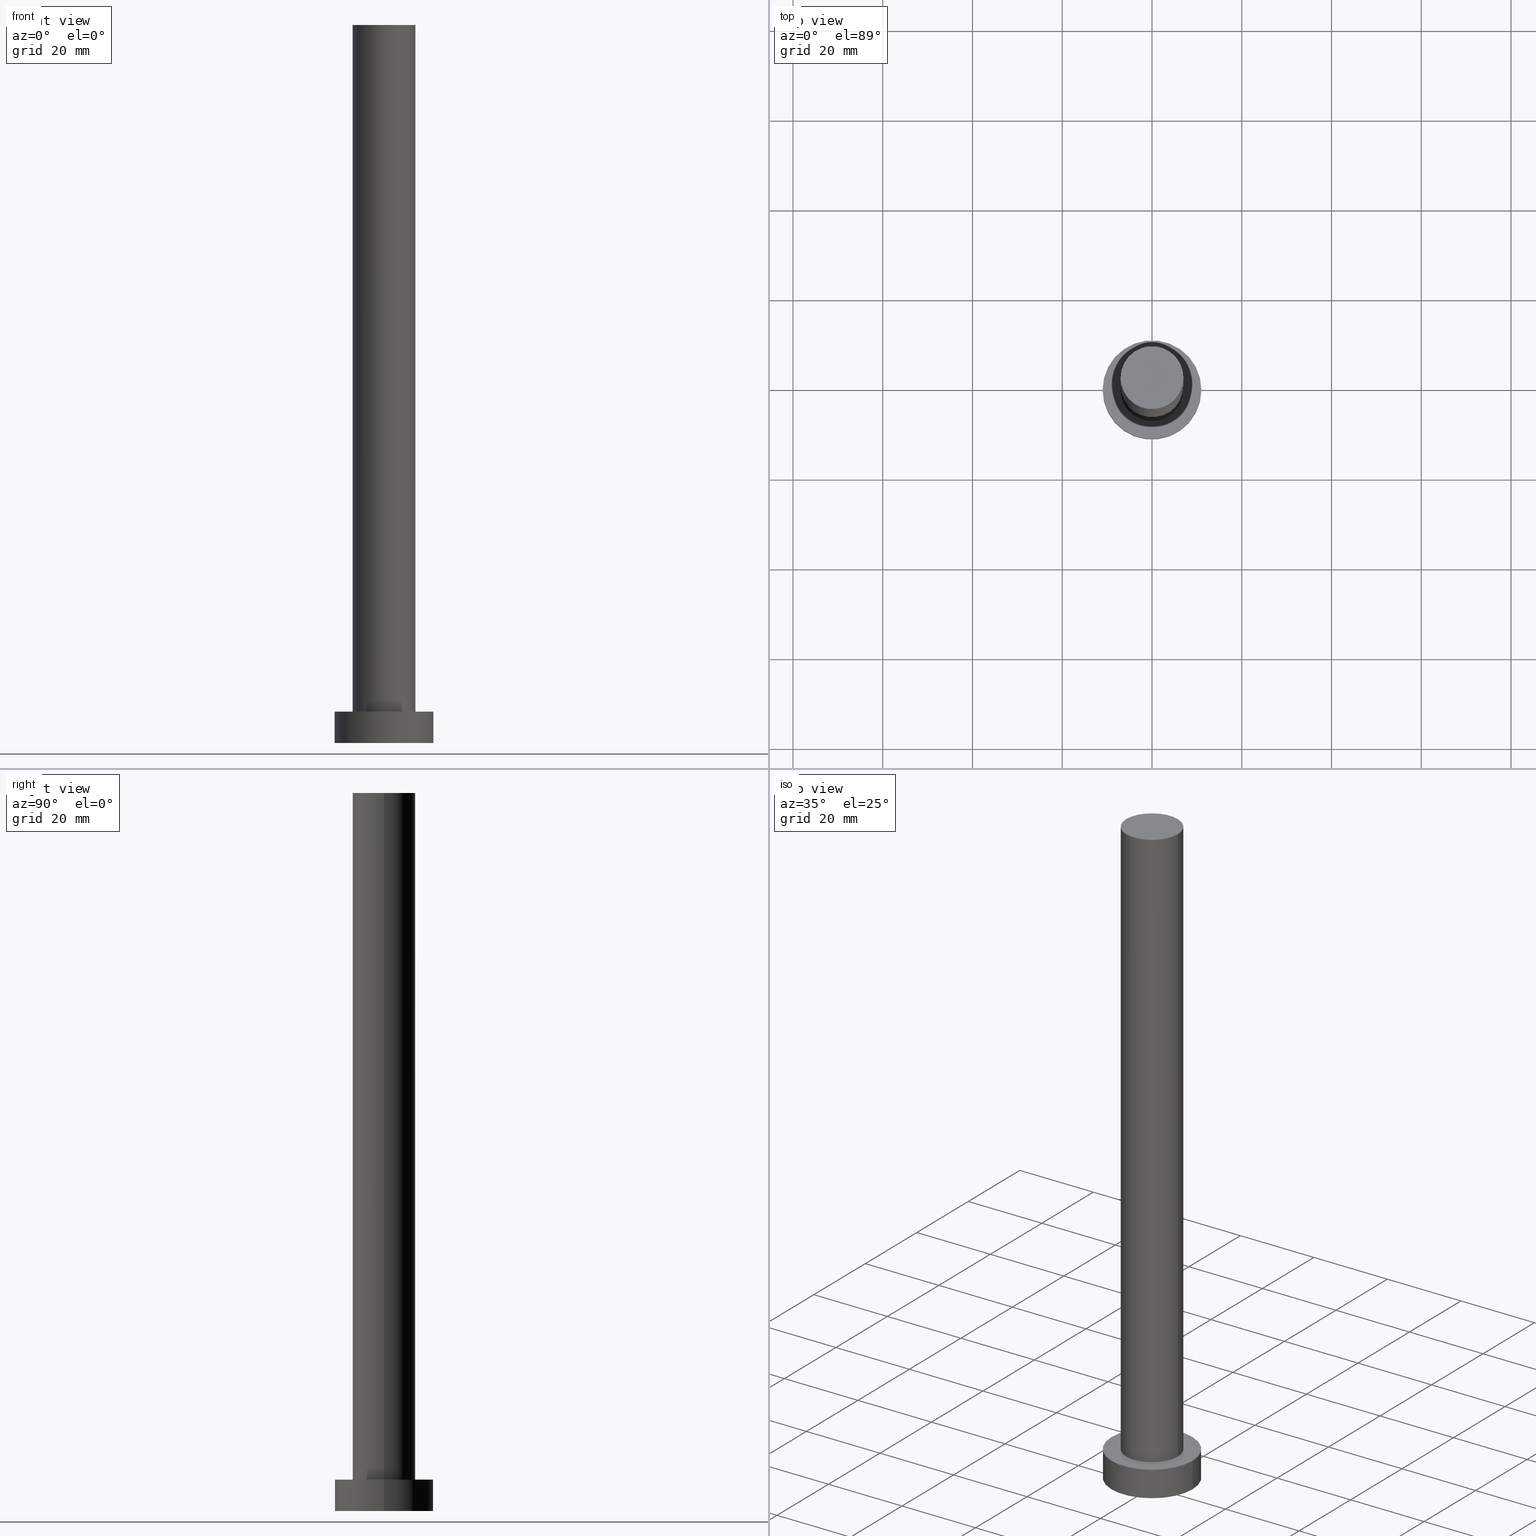
[diagram: canonical four-view strip — front | top / right | iso, engineering-drawing reading convention]
A machine part, canonical four-view strip (front | top / right | iso — engineering-drawing reading convention). The complete STEP part file that produces these views, byte-faithful:
ISO-10303-21;
HEADER;
FILE_DESCRIPTION (( 'STEP AP203' ),
    '1' );
FILE_NAME ('ef41.STEP',
    '2023-02-13T10:36:09',
    ( '' ),
    ( '' ),
    'SwSTEP 2.0',
    'SolidWorks 2019',
    '' );
FILE_SCHEMA (( 'CONFIG_CONTROL_DESIGN' ));
ENDSEC;

DATA;
#1 = EDGE_LOOP ( 'NONE', ( #198, #22, #152, #236 ) ) ;
#2 = CARTESIAN_POINT ( 'NONE',  ( 0.000000000000000000, 0.000000000000000000, 7.000000000000000000 ) ) ;
#3 = LINE ( 'NONE', #47, #178 ) ;
#4 = UNCERTAINTY_MEASURE_WITH_UNIT (LENGTH_MEASURE( 1.000000000000000082E-05 ), #24, 'distance_accuracy_value', 'NONE');
#5 = DIRECTION ( 'NONE',  ( 0.000000000000000000, 0.000000000000000000, 1.000000000000000000 ) ) ;
#6 = VECTOR ( 'NONE', #203, 1000.000000000000000 ) ;
#7 = AXIS2_PLACEMENT_3D ( 'NONE', #247, #130, #211 ) ;
#8 = ADVANCED_FACE ( 'NONE', ( #148 ), #113, .T. ) ;
#9 = DIRECTION ( 'NONE',  ( -0.000000000000000000, -0.000000000000000000, -1.000000000000000000 ) ) ;
#10 = PLANE ( 'NONE',  #65 ) ;
#11 = ADVANCED_FACE ( 'NONE', ( #255 ), #176, .T. ) ;
#12 = APPLICATION_PROTOCOL_DEFINITION ( 'international standard', 'config_control_design', 1994, #238 ) ;
#13 = ORGANIZATION ( 'NEUR�EN�', 'NEUR�EN�', '' ) ;
#14 = PERSON_AND_ORGANIZATION ( #160, #13 ) ;
#15 = COORDINATED_UNIVERSAL_TIME_OFFSET ( 1, 0, .AHEAD. ) ;
#16 = MECHANICAL_CONTEXT ( 'NONE', #238, 'mechanical' ) ;
#17 = VECTOR ( 'NONE', #212, 1000.000000000000000 ) ;
#18 = DIRECTION ( 'NONE',  ( -0.000000000000000000, -0.000000000000000000, -1.000000000000000000 ) ) ;
#19 = EDGE_CURVE ( 'NONE', #234, #116, #88, .T. ) ;
#20 = DIRECTION ( 'NONE',  ( 1.000000000000000000, 0.000000000000000000, 0.000000000000000000 ) ) ;
#21 = DIRECTION ( 'NONE',  ( -1.000000000000000000, 0.000000000000000000, 0.000000000000000000 ) ) ;
#22 = ORIENTED_EDGE ( 'NONE', *, *, #109, .T. ) ;
#23 = VERTEX_POINT ( 'NONE', #98 ) ;
#24 =( LENGTH_UNIT ( ) NAMED_UNIT ( * ) SI_UNIT ( .MILLI., .METRE. ) );
#25 = CARTESIAN_POINT ( 'NONE',  ( 11.00000000000000000, 1.347111479062088405E-15, 7.000000000000000000 ) ) ;
#26 = EDGE_CURVE ( 'NONE', #177, #116, #80, .T. ) ;
#27 = DIRECTION ( 'NONE',  ( 1.000000000000000000, 0.000000000000000000, 0.000000000000000000 ) ) ;
#28 = FACE_BOUND ( 'NONE', #199, .T. ) ;
#29 = EDGE_CURVE ( 'NONE', #201, #81, #53, .T. ) ;
#30 = PERSON_AND_ORGANIZATION ( #160, #13 ) ;
#31 = AXIS2_PLACEMENT_3D ( 'NONE', #202, #222, #159 ) ;
#32 = APPROVAL_PERSON_ORGANIZATION ( #73, #114, #54 ) ;
#33 = APPROVAL_STATUS ( 'not_yet_approved' ) ;
#34 = DATE_AND_TIME ( #231, #191 ) ;
#35 = DIRECTION ( 'NONE',  ( 0.000000000000000000, 0.000000000000000000, 1.000000000000000000 ) ) ;
#36 = ADVANCED_FACE ( 'NONE', ( #67 ), #181, .T. ) ;
#37 = APPLICATION_CONTEXT ( 'configuration controlled 3d designs of mechanical parts and assemblies' ) ;
#38 = ORIENTED_EDGE ( 'NONE', *, *, #182, .T. ) ;
#39 = AXIS2_PLACEMENT_3D ( 'NONE', #225, #206, #179 ) ;
#40 = ORIENTED_EDGE ( 'NONE', *, *, #63, .T. ) ;
#41 = APPROVAL_PERSON_ORGANIZATION ( #30, #156, #192 ) ;
#42 = ORIENTED_EDGE ( 'NONE', *, *, #253, .T. ) ;
#43 = ORIENTED_EDGE ( 'NONE', *, *, #26, .F. ) ;
#44 = CC_DESIGN_APPROVAL ( #156, ( #79 ) ) ;
#45 = CARTESIAN_POINT ( 'NONE',  ( 0.000000000000000000, 0.000000000000000000, 7.000000000000000000 ) ) ;
#46 = EDGE_CURVE ( 'NONE', #250, #234, #106, .T. ) ;
#47 = CARTESIAN_POINT ( 'NONE',  ( 11.00000000000000000, 1.347111479062088405E-15, 7.000000000000000000 ) ) ;
#48 = DIRECTION ( 'NONE',  ( 1.000000000000000000, 0.000000000000000000, 0.000000000000000000 ) ) ;
#49 = CIRCLE ( 'NONE', #220, 7.000000000000000888 ) ;
#50 = FACE_OUTER_BOUND ( 'NONE', #136, .T. ) ;
#51 = APPROVAL_STATUS ( 'not_yet_approved' ) ;
#52 = COORDINATED_UNIVERSAL_TIME_OFFSET ( 1, 0, .AHEAD. ) ;
#53 = CIRCLE ( 'NONE', #164, 11.00000000000000000 ) ;
#54 = APPROVAL_ROLE ( '' ) ;
#55 = CC_DESIGN_DATE_AND_TIME_ASSIGNMENT ( #171, #194, ( #168 ) ) ;
#56 = MANIFOLD_SOLID_BREP ( 'P�idat vysunut�m3', #204 ) ;
#57 = PERSON_AND_ORGANIZATION_ROLE ( 'design_supplier' ) ;
#58 = EDGE_LOOP ( 'NONE', ( #134, #218, #115, #154 ) ) ;
#59 = EDGE_LOOP ( 'NONE', ( #173, #254, #232, #42 ) ) ;
#60 = ORIENTED_EDGE ( 'NONE', *, *, #135, .F. ) ;
#61 = ORIENTED_EDGE ( 'NONE', *, *, #182, .F. ) ;
#62 = CARTESIAN_POINT ( 'NONE',  ( 0.000000000000000000, 0.000000000000000000, 7.000000000000000000 ) ) ;
#63 = EDGE_CURVE ( 'NONE', #177, #250, #49, .T. ) ;
#64 = PLANE ( 'NONE',  #83 ) ;
#65 = AXIS2_PLACEMENT_3D ( 'NONE', #91, #162, #221 ) ;
#66 = CARTESIAN_POINT ( 'NONE',  ( 0.000000000000000000, 0.000000000000000000, 160.0000000000000000 ) ) ;
#67 = FACE_OUTER_BOUND ( 'NONE', #217, .T. ) ;
#68 = DIRECTION ( 'NONE',  ( 0.000000000000000000, 0.000000000000000000, 1.000000000000000000 ) ) ;
#69 = AXIS2_PLACEMENT_3D ( 'NONE', #82, #97, #20 ) ;
#70 = PRODUCT_DEFINITION_FORMATION_WITH_SPECIFIED_SOURCE ( 'LIBOVOLN�', '', #196, .NOT_KNOWN. ) ;
#71 = DATE_AND_TIME ( #245, #229 ) ;
#72 = APPROVAL_DATE_TIME ( #34, #114 ) ;
#73 = PERSON_AND_ORGANIZATION ( #160, #13 ) ;
#74 = ADVANCED_FACE ( 'NONE', ( #157 ), #121, .T. ) ;
#75 = APPROVAL_ROLE ( '' ) ;
#76 = PERSON_AND_ORGANIZATION ( #160, #13 ) ;
#77 = EDGE_LOOP ( 'NONE', ( #233, #84 ) ) ;
#78 = AXIS2_PLACEMENT_3D ( 'NONE', #101, #242, #124 ) ;
#79 = SECURITY_CLASSIFICATION ( '', '', #165 ) ;
#80 = LINE ( 'NONE', #153, #17 ) ;
#81 = VERTEX_POINT ( 'NONE', #25 ) ;
#82 = CARTESIAN_POINT ( 'NONE',  ( 0.000000000000000000, 0.000000000000000000, 7.000000000000000000 ) ) ;
#83 = AXIS2_PLACEMENT_3D ( 'NONE', #119, #5, #87 ) ;
#84 = ORIENTED_EDGE ( 'NONE', *, *, #246, .T. ) ;
#85 = DIRECTION ( 'NONE',  ( 0.000000000000000000, 0.000000000000000000, 1.000000000000000000 ) ) ;
#86 = DIRECTION ( 'NONE',  ( 1.000000000000000000, 0.000000000000000000, 0.000000000000000000 ) ) ;
#87 = DIRECTION ( 'NONE',  ( 1.000000000000000000, 0.000000000000000000, -0.000000000000000000 ) ) ;
#88 = CIRCLE ( 'NONE', #69, 7.000000000000000888 ) ;
#89 = CC_DESIGN_APPROVAL ( #114, ( #168 ) ) ;
#90 = CARTESIAN_POINT ( 'NONE',  ( -7.000000000000000888, 0.000000000000000000, 160.0000000000000000 ) ) ;
#91 = CARTESIAN_POINT ( 'NONE',  ( 0.000000000000000000, 0.000000000000000000, 0.000000000000000000 ) ) ;
#92 = COORDINATED_UNIVERSAL_TIME_OFFSET ( 1, 0, .AHEAD. ) ;
#93 = ADVANCED_FACE ( 'NONE', ( #28, #205 ), #64, .T. ) ;
#94 = CALENDAR_DATE ( 2023, 13, 2 ) ;
#95 = APPLICATION_PROTOCOL_DEFINITION ( 'international standard', 'config_control_design', 1994, #37 ) ;
#96 = DATE_AND_TIME ( #249, #169 ) ;
#97 = DIRECTION ( 'NONE',  ( 0.000000000000000000, 0.000000000000000000, 1.000000000000000000 ) ) ;
#98 = CARTESIAN_POINT ( 'NONE',  ( 11.00000000000000000, 1.347111479062088405E-15, 0.000000000000000000 ) ) ;
#99 = CC_DESIGN_PERSON_AND_ORGANIZATION_ASSIGNMENT ( #110, #111, ( #168 ) ) ;
#100 = ORIENTED_EDGE ( 'NONE', *, *, #19, .T. ) ;
#101 = CARTESIAN_POINT ( 'NONE',  ( 0.000000000000000000, 0.000000000000000000, 0.000000000000000000 ) ) ;
#102 =( GEOMETRIC_REPRESENTATION_CONTEXT ( 3 ) GLOBAL_UNCERTAINTY_ASSIGNED_CONTEXT ( ( #4 ) ) GLOBAL_UNIT_ASSIGNED_CONTEXT ( ( #24, #227, #167 ) ) REPRESENTATION_CONTEXT ( 'NONE', 'WORKASPACE' ) );
#103 = ADVANCED_BREP_SHAPE_REPRESENTATION ( 'ef41', ( #56, #7 ), #102 ) ;
#104 = CARTESIAN_POINT ( 'NONE',  ( 7.000000000000000888, 8.572527594031474176E-16, 7.000000000000000000 ) ) ;
#105 = DIRECTION ( 'NONE',  ( 0.000000000000000000, 0.000000000000000000, 1.000000000000000000 ) ) ;
#106 = LINE ( 'NONE', #219, #6 ) ;
#107 = CARTESIAN_POINT ( 'NONE',  ( -7.000000000000000888, 0.000000000000000000, 7.000000000000000000 ) ) ;
#108 = PERSON_AND_ORGANIZATION ( #160, #13 ) ;
#109 = EDGE_CURVE ( 'NONE', #81, #23, #3, .T. ) ;
#110 = PERSON_AND_ORGANIZATION ( #160, #13 ) ;
#111 = PERSON_AND_ORGANIZATION_ROLE ( 'creator' ) ;
#112 = PRODUCT_RELATED_PRODUCT_CATEGORY ( 'detail', '', ( #196 ) ) ;
#113 = CYLINDRICAL_SURFACE ( 'NONE', #146, 7.000000000000000888 ) ;
#114 = APPROVAL ( #51, 'NEUR�EN�' ) ;
#115 = ORIENTED_EDGE ( 'NONE', *, *, #150, .T. ) ;
#116 = VERTEX_POINT ( 'NONE', #107 ) ;
#117 = EDGE_LOOP ( 'NONE', ( #61, #215, #100, #43 ) ) ;
#118 = AXIS2_PLACEMENT_3D ( 'NONE', #66, #85, #161 ) ;
#119 = CARTESIAN_POINT ( 'NONE',  ( 0.000000000000000000, 0.000000000000000000, 7.000000000000000000 ) ) ;
#120 = CC_DESIGN_SECURITY_CLASSIFICATION ( #79, ( #70 ) ) ;
#121 = CYLINDRICAL_SURFACE ( 'NONE', #209, 11.00000000000000000 ) ;
#122 = DIRECTION ( 'NONE',  ( -1.000000000000000000, 0.000000000000000000, 0.000000000000000000 ) ) ;
#123 = CC_DESIGN_PERSON_AND_ORGANIZATION_ASSIGNMENT ( #131, #57, ( #70 ) ) ;
#124 = DIRECTION ( 'NONE',  ( 1.000000000000000000, 0.000000000000000000, 0.000000000000000000 ) ) ;
#125 = CARTESIAN_POINT ( 'NONE',  ( 0.000000000000000000, 0.000000000000000000, 160.0000000000000000 ) ) ;
#126 = APPROVAL_STATUS ( 'not_yet_approved' ) ;
#127 = DATE_TIME_ROLE ( 'classification_date' ) ;
#128 = AXIS2_PLACEMENT_3D ( 'NONE', #45, #237, #139 ) ;
#129 = APPROVAL_PERSON_ORGANIZATION ( #14, #195, #75 ) ;
#130 = DIRECTION ( 'NONE',  ( 0.000000000000000000, 0.000000000000000000, 1.000000000000000000 ) ) ;
#131 = PERSON_AND_ORGANIZATION ( #160, #13 ) ;
#132 = VECTOR ( 'NONE', #241, 1000.000000000000000 ) ;
#133 = CARTESIAN_POINT ( 'NONE',  ( 0.000000000000000000, 0.000000000000000000, 160.0000000000000000 ) ) ;
#134 = ORIENTED_EDGE ( 'NONE', *, *, #109, .F. ) ;
#135 = EDGE_CURVE ( 'NONE', #200, #23, #228, .T. ) ;
#136 = EDGE_LOOP ( 'NONE', ( #60, #197 ) ) ;
#137 = ORIENTED_EDGE ( 'NONE', *, *, #19, .F. ) ;
#138 = ORIENTED_EDGE ( 'NONE', *, *, #253, .F. ) ;
#139 = DIRECTION ( 'NONE',  ( 1.000000000000000000, 0.000000000000000000, 0.000000000000000000 ) ) ;
#140 = AXIS2_PLACEMENT_3D ( 'NONE', #133, #18, #21 ) ;
#141 = DIRECTION ( 'NONE',  ( -0.000000000000000000, -0.000000000000000000, -1.000000000000000000 ) ) ;
#142 = LINE ( 'NONE', #243, #132 ) ;
#143 = ADVANCED_FACE ( 'NONE', ( #145 ), #185, .T. ) ;
#144 = CARTESIAN_POINT ( 'NONE',  ( 0.000000000000000000, 0.000000000000000000, 0.000000000000000000 ) ) ;
#145 = FACE_OUTER_BOUND ( 'NONE', #58, .T. ) ;
#146 = AXIS2_PLACEMENT_3D ( 'NONE', #172, #214, #252 ) ;
#147 = PERSON_AND_ORGANIZATION_ROLE ( 'creator' ) ;
#148 = FACE_OUTER_BOUND ( 'NONE', #117, .T. ) ;
#149 = AXIS2_PLACEMENT_3D ( 'NONE', #144, #105, #86 ) ;
#150 = EDGE_CURVE ( 'NONE', #201, #200, #142, .T. ) ;
#151 = CARTESIAN_POINT ( 'NONE',  ( 0.000000000000000000, 0.000000000000000000, 7.000000000000000000 ) ) ;
#152 = ORIENTED_EDGE ( 'NONE', *, *, #193, .T. ) ;
#153 = CARTESIAN_POINT ( 'NONE',  ( -7.000000000000000888, 0.000000000000000000, 160.0000000000000000 ) ) ;
#154 = ORIENTED_EDGE ( 'NONE', *, *, #135, .T. ) ;
#155 = CARTESIAN_POINT ( 'NONE',  ( 7.000000000000000888, 8.572527594031474176E-16, 160.0000000000000000 ) ) ;
#156 = APPROVAL ( #33, 'NEUR�EN�' ) ;
#157 = FACE_OUTER_BOUND ( 'NONE', #1, .T. ) ;
#158 = CC_DESIGN_PERSON_AND_ORGANIZATION_ASSIGNMENT ( #108, #210, ( #196 ) ) ;
#159 = DIRECTION ( 'NONE',  ( 1.000000000000000000, 0.000000000000000000, -0.000000000000000000 ) ) ;
#160 = PERSON ( 'NEUR�EN�', 'NEUR�EN�', 'NEUR�EN�', ('NEUR�EN�'), ('NEUR�EN�'), ('NEUR�EN�') ) ;
#161 = DIRECTION ( 'NONE',  ( 1.000000000000000000, 0.000000000000000000, 0.000000000000000000 ) ) ;
#162 = DIRECTION ( 'NONE',  ( 0.000000000000000000, 0.000000000000000000, 1.000000000000000000 ) ) ;
#163 = PERSON_AND_ORGANIZATION_ROLE ( 'classification_officer' ) ;
#164 = AXIS2_PLACEMENT_3D ( 'NONE', #151, #35, #48 ) ;
#165 = SECURITY_CLASSIFICATION_LEVEL ( 'unclassified' ) ;
#166 = DATE_AND_TIME ( #94, #235 ) ;
#167 =( NAMED_UNIT ( * ) SI_UNIT ( $, .STERADIAN. ) SOLID_ANGLE_UNIT ( ) );
#168 = PRODUCT_DEFINITION ( 'NEZN�M�', '', #70, #180 ) ;
#169 = LOCAL_TIME ( 11, 36, 9.000000000000000000, #230 ) ;
#170 = CC_DESIGN_DATE_AND_TIME_ASSIGNMENT ( #71, #127, ( #79 ) ) ;
#171 = DATE_AND_TIME ( #189, #175 ) ;
#172 = CARTESIAN_POINT ( 'NONE',  ( 0.000000000000000000, 0.000000000000000000, 160.0000000000000000 ) ) ;
#173 = ORIENTED_EDGE ( 'NONE', *, *, #46, .F. ) ;
#174 = CIRCLE ( 'NONE', #118, 7.000000000000000888 ) ;
#175 = LOCAL_TIME ( 11, 36, 9.000000000000000000, #52 ) ;
#176 = CYLINDRICAL_SURFACE ( 'NONE', #140, 7.000000000000000888 ) ;
#177 = VERTEX_POINT ( 'NONE', #90 ) ;
#178 = VECTOR ( 'NONE', #141, 1000.000000000000000 ) ;
#179 = DIRECTION ( 'NONE',  ( 1.000000000000000000, 0.000000000000000000, 0.000000000000000000 ) ) ;
#180 = DESIGN_CONTEXT ( 'detailed design', #37, 'design' ) ;
#181 = PLANE ( 'NONE',  #31 ) ;
#182 = EDGE_CURVE ( 'NONE', #250, #177, #174, .T. ) ;
#183 = DIRECTION ( 'NONE',  ( -1.000000000000000000, 0.000000000000000000, 0.000000000000000000 ) ) ;
#184 = CIRCLE ( 'NONE', #128, 7.000000000000000888 ) ;
#185 = CYLINDRICAL_SURFACE ( 'NONE', #244, 11.00000000000000000 ) ;
#186 = CARTESIAN_POINT ( 'NONE',  ( -11.00000000000000000, 0.000000000000000000, 7.000000000000000000 ) ) ;
#187 = PRODUCT_DEFINITION_SHAPE ( 'NONE', 'NONE',  #168 ) ;
#188 = PERSON_AND_ORGANIZATION ( #160, #13 ) ;
#189 = CALENDAR_DATE ( 2023, 13, 2 ) ;
#190 = CIRCLE ( 'NONE', #78, 11.00000000000000000 ) ;
#191 = LOCAL_TIME ( 11, 36, 9.000000000000000000, #92 ) ;
#192 = APPROVAL_ROLE ( '' ) ;
#193 = EDGE_CURVE ( 'NONE', #23, #200, #190, .T. ) ;
#194 = DATE_TIME_ROLE ( 'creation_date' ) ;
#195 = APPROVAL ( #126, 'NEUR�EN�' ) ;
#196 = PRODUCT ( 'ef41', 'ef41', '', ( #16 ) ) ;
#197 = ORIENTED_EDGE ( 'NONE', *, *, #193, .F. ) ;
#198 = ORIENTED_EDGE ( 'NONE', *, *, #246, .F. ) ;
#199 = EDGE_LOOP ( 'NONE', ( #138, #137 ) ) ;
#200 = VERTEX_POINT ( 'NONE', #223 ) ;
#201 = VERTEX_POINT ( 'NONE', #186 ) ;
#202 = CARTESIAN_POINT ( 'NONE',  ( 0.000000000000000000, 0.000000000000000000, 160.0000000000000000 ) ) ;
#203 = DIRECTION ( 'NONE',  ( -0.000000000000000000, -0.000000000000000000, -1.000000000000000000 ) ) ;
#204 = CLOSED_SHELL ( 'NONE', ( #8, #74, #143, #93, #226, #11, #36 ) ) ;
#205 = FACE_OUTER_BOUND ( 'NONE', #77, .T. ) ;
#206 = DIRECTION ( 'NONE',  ( 0.000000000000000000, 0.000000000000000000, 1.000000000000000000 ) ) ;
#207 = APPROVAL_DATE_TIME ( #96, #195 ) ;
#208 = COORDINATED_UNIVERSAL_TIME_OFFSET ( 1, 0, .AHEAD. ) ;
#209 = AXIS2_PLACEMENT_3D ( 'NONE', #62, #239, #122 ) ;
#210 = PERSON_AND_ORGANIZATION_ROLE ( 'design_owner' ) ;
#211 = DIRECTION ( 'NONE',  ( 1.000000000000000000, 0.000000000000000000, 0.000000000000000000 ) ) ;
#212 = DIRECTION ( 'NONE',  ( -0.000000000000000000, -0.000000000000000000, -1.000000000000000000 ) ) ;
#213 = SHAPE_DEFINITION_REPRESENTATION ( #187, #103 ) ;
#214 = DIRECTION ( 'NONE',  ( -0.000000000000000000, -0.000000000000000000, -1.000000000000000000 ) ) ;
#215 = ORIENTED_EDGE ( 'NONE', *, *, #46, .T. ) ;
#216 = CC_DESIGN_PERSON_AND_ORGANIZATION_ASSIGNMENT ( #76, #147, ( #70 ) ) ;
#217 = EDGE_LOOP ( 'NONE', ( #40, #38 ) ) ;
#218 = ORIENTED_EDGE ( 'NONE', *, *, #29, .F. ) ;
#219 = CARTESIAN_POINT ( 'NONE',  ( 7.000000000000000888, 8.572527594031474176E-16, 160.0000000000000000 ) ) ;
#220 = AXIS2_PLACEMENT_3D ( 'NONE', #125, #68, #27 ) ;
#221 = DIRECTION ( 'NONE',  ( 1.000000000000000000, 0.000000000000000000, -0.000000000000000000 ) ) ;
#222 = DIRECTION ( 'NONE',  ( 0.000000000000000000, 0.000000000000000000, 1.000000000000000000 ) ) ;
#223 = CARTESIAN_POINT ( 'NONE',  ( -11.00000000000000000, 0.000000000000000000, 0.000000000000000000 ) ) ;
#224 = CC_DESIGN_APPROVAL ( #195, ( #70 ) ) ;
#225 = CARTESIAN_POINT ( 'NONE',  ( 0.000000000000000000, 0.000000000000000000, 7.000000000000000000 ) ) ;
#226 = ADVANCED_FACE ( 'NONE', ( #50 ), #10, .F. ) ;
#227 =( NAMED_UNIT ( * ) PLANE_ANGLE_UNIT ( ) SI_UNIT ( $, .RADIAN. ) );
#228 = CIRCLE ( 'NONE', #149, 11.00000000000000000 ) ;
#229 = LOCAL_TIME ( 11, 36, 9.000000000000000000, #208 ) ;
#230 = COORDINATED_UNIVERSAL_TIME_OFFSET ( 1, 0, .AHEAD. ) ;
#231 = CALENDAR_DATE ( 2023, 13, 2 ) ;
#232 = ORIENTED_EDGE ( 'NONE', *, *, #26, .T. ) ;
#233 = ORIENTED_EDGE ( 'NONE', *, *, #29, .T. ) ;
#234 = VERTEX_POINT ( 'NONE', #104 ) ;
#235 = LOCAL_TIME ( 11, 36, 9.000000000000000000, #15 ) ;
#236 = ORIENTED_EDGE ( 'NONE', *, *, #150, .F. ) ;
#237 = DIRECTION ( 'NONE',  ( 0.000000000000000000, 0.000000000000000000, 1.000000000000000000 ) ) ;
#238 = APPLICATION_CONTEXT ( 'configuration controlled 3d designs of mechanical parts and assemblies' ) ;
#239 = DIRECTION ( 'NONE',  ( -0.000000000000000000, -0.000000000000000000, -1.000000000000000000 ) ) ;
#240 = CIRCLE ( 'NONE', #39, 11.00000000000000000 ) ;
#241 = DIRECTION ( 'NONE',  ( -0.000000000000000000, -0.000000000000000000, -1.000000000000000000 ) ) ;
#242 = DIRECTION ( 'NONE',  ( 0.000000000000000000, 0.000000000000000000, 1.000000000000000000 ) ) ;
#243 = CARTESIAN_POINT ( 'NONE',  ( -11.00000000000000000, 0.000000000000000000, 7.000000000000000000 ) ) ;
#244 = AXIS2_PLACEMENT_3D ( 'NONE', #2, #9, #183 ) ;
#245 = CALENDAR_DATE ( 2023, 13, 2 ) ;
#246 = EDGE_CURVE ( 'NONE', #81, #201, #240, .T. ) ;
#247 = CARTESIAN_POINT ( 'NONE',  ( 0.000000000000000000, 0.000000000000000000, 0.000000000000000000 ) ) ;
#248 = APPROVAL_DATE_TIME ( #166, #156 ) ;
#249 = CALENDAR_DATE ( 2023, 13, 2 ) ;
#250 = VERTEX_POINT ( 'NONE', #155 ) ;
#251 = CC_DESIGN_PERSON_AND_ORGANIZATION_ASSIGNMENT ( #188, #163, ( #79 ) ) ;
#252 = DIRECTION ( 'NONE',  ( -1.000000000000000000, 0.000000000000000000, 0.000000000000000000 ) ) ;
#253 = EDGE_CURVE ( 'NONE', #116, #234, #184, .T. ) ;
#254 = ORIENTED_EDGE ( 'NONE', *, *, #63, .F. ) ;
#255 = FACE_OUTER_BOUND ( 'NONE', #59, .T. ) ;
ENDSEC;
END-ISO-10303-21;
